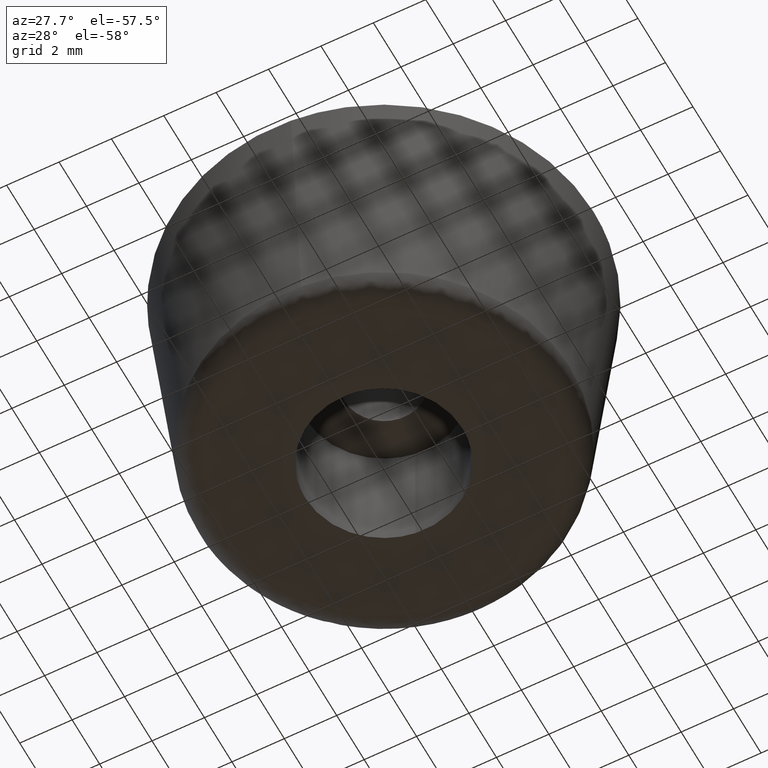
[diagram: clean part render]
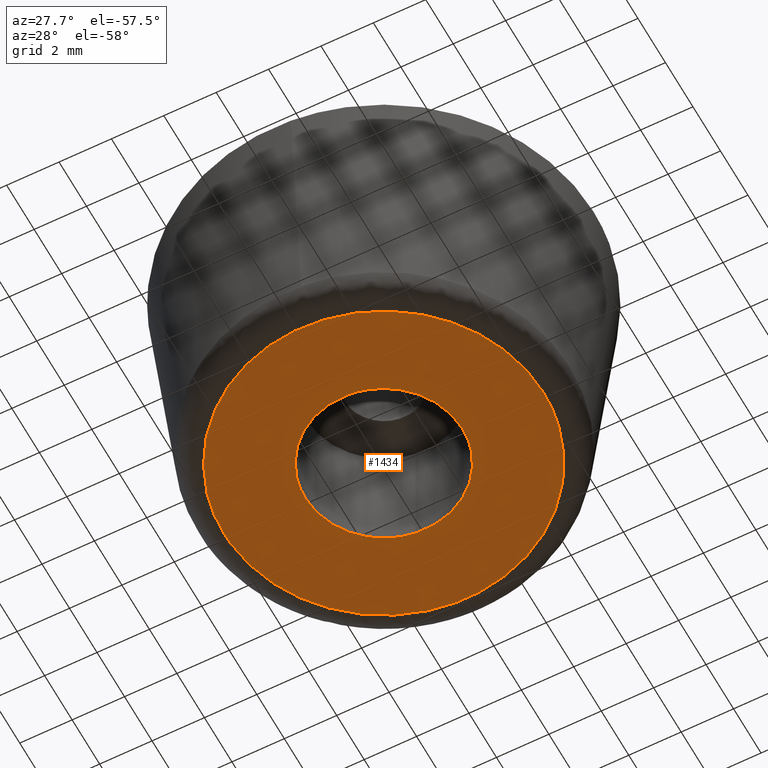
[diagram: same view with one face highlighted and labeled with its STEP entity id]
A machine part, auxiliary view. The second image highlights one B-rep face of the part: STEP entity #1434.
In plain terms, the highlighted face is a freeform B-spline surface patch.
Its self-contained STEP definition (entity closure, byte-faithful):
#1103=CARTESIAN_POINT('',(-0.354100897287089,2.979028793841571,6.573276E-015));
#1104=VERTEX_POINT('',#1103);
#1105=CARTESIAN_POINT('',(3.0,0.0,0.0));
#1106=VERTEX_POINT('',#1105);
#1107=CARTESIAN_POINT('',(-0.354100897287090,2.979028793841571,6.573276E-015));
#1108=CARTESIAN_POINT('',(-0.177671446064207,3.000000000000000,0.0));
#1109=CARTESIAN_POINT('',(0.0,3.0,0.0));
#1110=CARTESIAN_POINT('',(3.0,3.0,0.0));
#1111=CARTESIAN_POINT('',(3.0,0.0,0.0));
#1119=(BOUNDED_CURVE()B_SPLINE_CURVE(2,(#1107,#1108,#1109,#1110,#1111),.UNSPECIFIED.,.F.,.U.)B_SPLINE_CURVE_WITH_KNOTS((3,2,3),(0.229562576010579,0.250000000000000,0.500000000000000),.UNSPECIFIED.)CURVE()GEOMETRIC_REPRESENTATION_ITEM()RATIONAL_B_SPLINE_CURVE((0.956026955082251,0.976056068413933,1.0,0.707106781186548,1.0))REPRESENTATION_ITEM(''));
#1120=EDGE_CURVE('',#1104,#1106,#1119,.T.);
#1122=CARTESIAN_POINT('',(0.183142324537267,-2.994404596735751,-1.675049E-014));
#1123=VERTEX_POINT('',#1122);
#1124=CARTESIAN_POINT('',(3.0,0.0,0.0));
#1125=CARTESIAN_POINT('',(3.000000000000000,-2.822121311059588,0.0));
#1126=CARTESIAN_POINT('',(0.183142324537267,-2.994404596735751,-1.675049E-014));
#1134=(BOUNDED_CURVE()B_SPLINE_CURVE(2,(#1124,#1125,#1126),.UNSPECIFIED.,.F.,.U.)B_SPLINE_CURVE_WITH_KNOTS((3,3),(0.500000000000000,0.739333152056283),.UNSPECIFIED.)CURVE()GEOMETRIC_REPRESENTATION_ITEM()RATIONAL_B_SPLINE_CURVE((1.0,0.719603770901863,0.976072448481749))REPRESENTATION_ITEM(''));
#1135=EDGE_CURVE('',#1106,#1123,#1134,.T.);
#1202=CARTESIAN_POINT('',(-3.0,0.0,0.0));
#1203=VERTEX_POINT('',#1202);
#1204=CARTESIAN_POINT('',(-3.0,0.0,0.0));
#1205=CARTESIAN_POINT('',(-3.000000000000000,2.664525205176386,0.0));
#1206=CARTESIAN_POINT('',(-0.354100897287090,2.979028793841571,6.573276E-015));
#1214=(BOUNDED_CURVE()B_SPLINE_CURVE(2,(#1204,#1205,#1206),.UNSPECIFIED.,.F.,.U.)B_SPLINE_CURVE_WITH_KNOTS((3,3),(0.0,0.229562576010579),.UNSPECIFIED.)CURVE()GEOMETRIC_REPRESENTATION_ITEM()RATIONAL_B_SPLINE_CURVE((1.0,0.731050712772614,0.956026955082251))REPRESENTATION_ITEM(''));
#1215=EDGE_CURVE('',#1203,#1104,#1214,.T.);
#1249=CARTESIAN_POINT('',(0.183142324537267,-2.994404596735751,-1.675049E-014));
#1250=CARTESIAN_POINT('',(0.091656638244131,-3.000000000000000,0.0));
#1251=CARTESIAN_POINT('',(0.0,-3.0,0.0));
#1252=CARTESIAN_POINT('',(-3.0,-3.0,0.0));
#1253=CARTESIAN_POINT('',(-3.0,0.0,0.0));
#1261=(BOUNDED_CURVE()B_SPLINE_CURVE(2,(#1249,#1250,#1251,#1252,#1253),.UNSPECIFIED.,.F.,.U.)B_SPLINE_CURVE_WITH_KNOTS((3,2,3),(0.739333152056283,0.750000000000000,1.0),.UNSPECIFIED.)CURVE()GEOMETRIC_REPRESENTATION_ITEM()RATIONAL_B_SPLINE_CURVE((0.976072448481749,0.987503010284685,1.0,0.707106781186548,1.0))REPRESENTATION_ITEM(''));
#1262=EDGE_CURVE('',#1123,#1203,#1261,.T.);
#1296=CARTESIAN_POINT('',(0.459117783654933,6.077695463241705,2.831681E-014));
#1297=VERTEX_POINT('',#1296);
#1298=CARTESIAN_POINT('',(6.095012000000001,0.0,0.0));
#1299=VERTEX_POINT('',#1298);
#1300=CARTESIAN_POINT('',(0.459117783654933,6.077695463241705,2.831681E-014));
#1301=CARTESIAN_POINT('',(6.095012000000001,5.651951975630074,2.635567E-014));
#1302=CARTESIAN_POINT('',(6.095012000000001,0.0,0.0));
#1310=(BOUNDED_CURVE()B_SPLINE_CURVE(2,(#1300,#1301,#1302),.UNSPECIFIED.,.F.,.U.)B_SPLINE_CURVE_WITH_KNOTS((3,3),(0.263129840738883,0.500000000000000),.UNSPECIFIED.)CURVE()GEOMETRIC_REPRESENTATION_ITEM()RATIONAL_B_SPLINE_CURVE((0.970850634524638,0.722489346452625,1.0))REPRESENTATION_ITEM(''));
#1311=EDGE_CURVE('',#1297,#1299,#1310,.T.);
#1331=CARTESIAN_POINT('',(-6.077695463252528,0.459117783657172,2.832610E-014));
#1332=VERTEX_POINT('',#1331);
#1346=CARTESIAN_POINT('',(-6.095012000000001,0.0,2.842171E-014));
#1347=VERTEX_POINT('',#1346);
#1348=CARTESIAN_POINT('',(-6.095012000000001,0.0,2.842171E-014));
#1349=CARTESIAN_POINT('',(-6.095012000000001,0.229885455584437,2.842171E-014));
#1350=CARTESIAN_POINT('',(-6.077695463252530,0.459117783657172,2.832610E-014));
#1358=(BOUNDED_CURVE()B_SPLINE_CURVE(2,(#1348,#1349,#1350),.UNSPECIFIED.,.F.,.U.)B_SPLINE_CURVE_WITH_KNOTS((3,3),(0.0,0.013129840738962),.UNSPECIFIED.)CURVE()GEOMETRIC_REPRESENTATION_ITEM()RATIONAL_B_SPLINE_CURVE((1.0,0.984617434733829,0.970850634524470))REPRESENTATION_ITEM(''));
#1359=EDGE_CURVE('',#1347,#1332,#1358,.T.);
#1361=CARTESIAN_POINT('',(6.095012000000001,0.0,0.0));
#1362=CARTESIAN_POINT('',(6.095012000000002,-6.095012000000002,2.842171E-014));
#1363=CARTESIAN_POINT('',(0.0,-6.095012000000001,2.842171E-014));
#1364=CARTESIAN_POINT('',(-6.095012000000002,-6.095012000000002,2.842171E-014));
#1365=CARTESIAN_POINT('',(-6.095012000000001,0.0,2.842171E-014));
#1373=(BOUNDED_CURVE()B_SPLINE_CURVE(2,(#1361,#1362,#1363,#1364,#1365),.UNSPECIFIED.,.F.,.U.)B_SPLINE_CURVE_WITH_KNOTS((3,2,3),(0.500000000000000,0.750000000000000,1.0),.UNSPECIFIED.)CURVE()GEOMETRIC_REPRESENTATION_ITEM()RATIONAL_B_SPLINE_CURVE((1.0,0.707106781186548,1.0,0.707106781186548,1.0))REPRESENTATION_ITEM(''));
#1374=EDGE_CURVE('',#1299,#1347,#1373,.T.);
#1396=CARTESIAN_POINT('',(-6.077695463252530,0.459117783657172,2.832610E-014));
#1397=CARTESIAN_POINT('',(-5.651951975627436,6.095012000000001,2.842171E-014));
#1398=CARTESIAN_POINT('',(0.0,6.095012000000001,2.842171E-014));
#1399=CARTESIAN_POINT('',(0.229885455583017,6.095012000000001,2.842171E-014));
#1400=CARTESIAN_POINT('',(0.459117783654933,6.077695463241705,2.831681E-014));
#1408=(BOUNDED_CURVE()B_SPLINE_CURVE(2,(#1396,#1397,#1398,#1399,#1400),.UNSPECIFIED.,.F.,.U.)B_SPLINE_CURVE_WITH_KNOTS((3,2,3),(0.013129840738962,0.250000000000000,0.263129840738883),.UNSPECIFIED.)CURVE()GEOMETRIC_REPRESENTATION_ITEM()RATIONAL_B_SPLINE_CURVE((0.970850634524470,0.722489346452718,1.0,0.984617434733923,0.970850634524638))REPRESENTATION_ITEM(''));
#1409=EDGE_CURVE('',#1332,#1297,#1408,.T.);
#1417=CARTESIAN_POINT('',(-6.703903904035815,-6.703823096887110,1.421085E-014));
#1418=CARTESIAN_POINT('',(6.703904013023122,-6.703823096887110,1.421085E-014));
#1419=CARTESIAN_POINT('',(-6.703903904035815,6.702205445149555,1.421085E-014));
#1420=CARTESIAN_POINT('',(6.703904013023123,6.702205445149555,1.421085E-014));
#1421=B_SPLINE_SURFACE_WITH_KNOTS('',1,1,((#1417,#1419),(#1418,#1420)),.UNSPECIFIED.,.F.,.F.,.U.,(2,2),(2,2),(0.0,13.407807917058941),(0.0,13.406028542036671),.UNSPECIFIED.);
#1422=ORIENTED_EDGE('',*,*,#1359,.T.);
#1423=ORIENTED_EDGE('',*,*,#1409,.T.);
#1424=ORIENTED_EDGE('',*,*,#1311,.T.);
#1425=ORIENTED_EDGE('',*,*,#1374,.T.);
#1426=EDGE_LOOP('',(#1422,#1423,#1424,#1425));
#1427=FACE_OUTER_BOUND('',#1426,.T.);
#1428=ORIENTED_EDGE('',*,*,#1135,.F.);
#1429=ORIENTED_EDGE('',*,*,#1120,.F.);
#1430=ORIENTED_EDGE('',*,*,#1215,.F.);
#1431=ORIENTED_EDGE('',*,*,#1262,.F.);
#1432=EDGE_LOOP('',(#1428,#1429,#1430,#1431));
#1433=FACE_BOUND('',#1432,.T.);
#1434=ADVANCED_FACE('',(#1427,#1433),#1421,.F.);